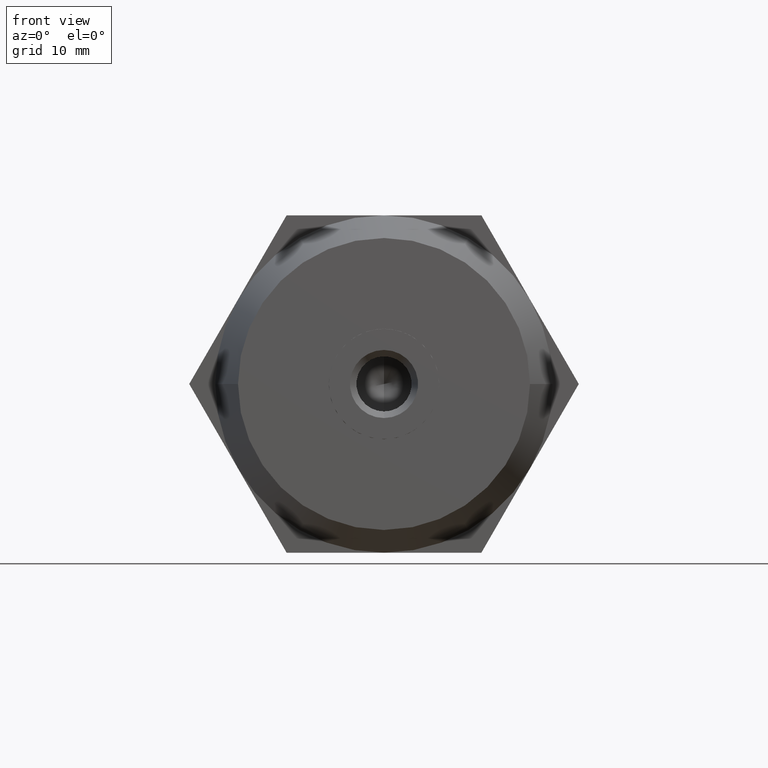
[diagram: clean part render]
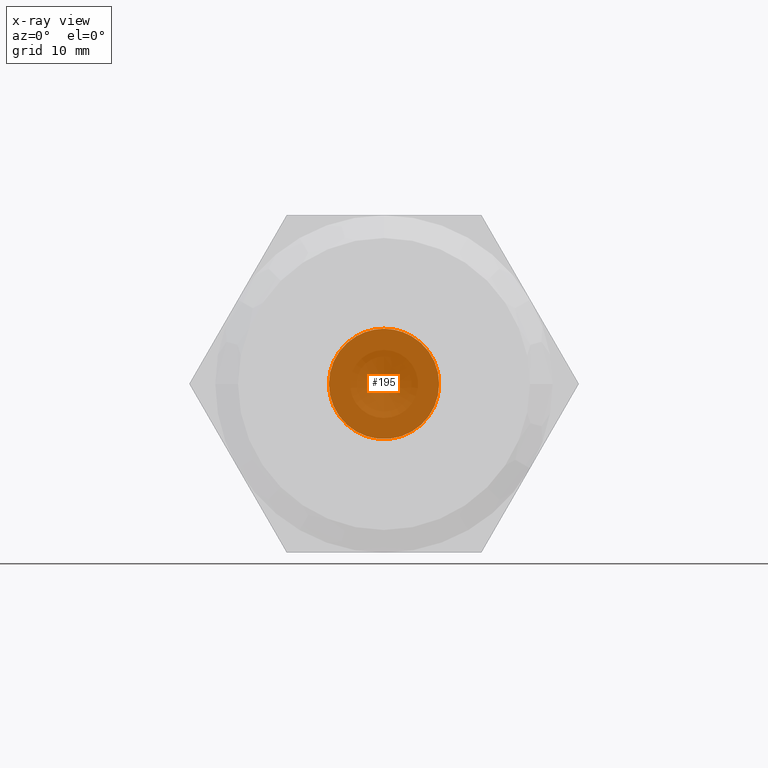
[diagram: x-ray — body ghosted, one internal face saturated and labeled with its STEP entity id]
A machine part, front view, then the same camera in x-ray: the body is ghosted and one INTERNAL B-rep face — a face not visible from any outside direction — is saturated and labeled: STEP entity #195.
In plain terms, the highlighted planar face has unit normal (0, 1, 0).
Its self-contained STEP definition (entity closure, byte-faithful):
#40 = AXIS2_PLACEMENT_3D ( 'NONE', #531, #3371, #2566 ) ;
#102 = DIRECTION ( 'NONE',  ( -0.0000000000000000000, -1.000000000000000000, -0.0000000000000000000 ) ) ;
#137 = AXIS2_PLACEMENT_3D ( 'NONE', #4569, #3074, #3446 ) ;
#176 = CARTESIAN_POINT ( 'NONE',  ( 0.0000000000000000000, 21.01000000000000200, 0.0000000000000000000 ) ) ;
#195 = ADVANCED_FACE ( 'NONE', ( #2151 ), #2296, .T. ) ;
#377 = DIRECTION ( 'NONE',  ( -0.0000000000000000000, -1.000000000000000000, -0.0000000000000000000 ) ) ;
#468 = DIRECTION ( 'NONE',  ( 1.776356839400250500E-015, 0.0000000000000000000, 1.000000000000000000 ) ) ;
#531 = CARTESIAN_POINT ( 'NONE',  ( 0.0000000000000000000, 21.01000000000000200, 0.0000000000000000000 ) ) ;
#536 = VERTEX_POINT ( 'NONE', #1663 ) ;
#562 = ORIENTED_EDGE ( 'NONE', *, *, #2543, .F. ) ;
#602 = VERTEX_POINT ( 'NONE', #781 ) ;
#781 = CARTESIAN_POINT ( 'NONE',  ( -4.249999999999935200, 21.00999999999900300, -7.361215932167759500 ) ) ;
#989 = DIRECTION ( 'NONE',  ( 5.329070518200752200E-015, 0.0000000000000000000, 1.000000000000000000 ) ) ;
#997 = DIRECTION ( 'NONE',  ( 0.0000000000000000000, 0.0000000000000000000, 1.000000000000000000 ) ) ;
#1014 = CARTESIAN_POINT ( 'NONE',  ( 8.500000000000000000, 21.01000000000000200, -3.469446951953615000E-015 ) ) ;
#1017 = CARTESIAN_POINT ( 'NONE',  ( 0.0000000000000000000, 21.01000000000000200, 0.0000000000000000000 ) ) ;
#1059 = ORIENTED_EDGE ( 'NONE', *, *, #1847, .F. ) ;
#1080 = CARTESIAN_POINT ( 'NONE',  ( -4.250000000000000000, 21.01000000000000200, 7.361215932167730200 ) ) ;
#1098 = DIRECTION ( 'NONE',  ( 0.0000000000000000000, 0.0000000000000000000, 1.000000000000000000 ) ) ;
#1226 = ORIENTED_EDGE ( 'NONE', *, *, #4556, .F. ) ;
#1350 = CIRCLE ( 'NONE', #2420, 8.500000000000000000 ) ;
#1583 = VERTEX_POINT ( 'NONE', #1080 ) ;
#1663 = CARTESIAN_POINT ( 'NONE',  ( 4.249999999999935200, 21.00999999999900300, 7.361215932167770100 ) ) ;
#1727 = CARTESIAN_POINT ( 'NONE',  ( 0.0000000000000000000, 21.01000000000000200, 8.500000000000000000 ) ) ;
#1795 = CIRCLE ( 'NONE', #4964, 8.500000000000000000 ) ;
#1847 = EDGE_CURVE ( 'NONE', #4633, #3278, #2586, .T. ) ;
#1964 = DIRECTION ( 'NONE',  ( 0.0000000000000000000, 1.000000000000000000, 0.0000000000000000000 ) ) ;
#1993 = CARTESIAN_POINT ( 'NONE',  ( 0.0000000000000000000, 21.01000000000000200, 0.0000000000000000000 ) ) ;
#2013 = EDGE_LOOP ( 'NONE', ( #3927, #2217, #1059, #562, #4083, #1226, #4515 ) ) ;
#2025 = EDGE_CURVE ( 'NONE', #3278, #536, #4104, .T. ) ;
#2151 = FACE_OUTER_BOUND ( 'NONE', #2013, .T. ) ;
#2217 = ORIENTED_EDGE ( 'NONE', *, *, #2025, .F. ) ;
#2296 = PLANE ( 'NONE',  #3242 ) ;
#2420 = AXIS2_PLACEMENT_3D ( 'NONE', #3227, #4017, #468 ) ;
#2451 = AXIS2_PLACEMENT_3D ( 'NONE', #3920, #377, #4324 ) ;
#2543 = EDGE_CURVE ( 'NONE', #602, #4633, #1350, .T. ) ;
#2566 = DIRECTION ( 'NONE',  ( 0.0000000000000000000, 0.0000000000000000000, 1.000000000000000000 ) ) ;
#2586 = CIRCLE ( 'NONE', #2451, 8.500000000000000000 ) ;
#2736 = CIRCLE ( 'NONE', #40, 8.500000000000000000 ) ;
#3000 = EDGE_CURVE ( 'NONE', #3186, #1583, #1795, .T. ) ;
#3074 = DIRECTION ( 'NONE',  ( -0.0000000000000000000, -1.000000000000000000, -0.0000000000000000000 ) ) ;
#3186 = VERTEX_POINT ( 'NONE', #1727 ) ;
#3227 = CARTESIAN_POINT ( 'NONE',  ( 0.0000000000000000000, 21.01000000000000200, 0.0000000000000000000 ) ) ;
#3242 = AXIS2_PLACEMENT_3D ( 'NONE', #3487, #1964, #1098 ) ;
#3267 = CIRCLE ( 'NONE', #4735, 8.500000000000000000 ) ;
#3278 = VERTEX_POINT ( 'NONE', #1014 ) ;
#3326 = EDGE_CURVE ( 'NONE', #536, #3186, #3267, .T. ) ;
#3353 = CARTESIAN_POINT ( 'NONE',  ( -8.500000000000000000, 21.01000000000000200, 0.0000000000000000000 ) ) ;
#3371 = DIRECTION ( 'NONE',  ( -0.0000000000000000000, -1.000000000000000000, -0.0000000000000000000 ) ) ;
#3446 = DIRECTION ( 'NONE',  ( 0.0000000000000000000, 0.0000000000000000000, 1.000000000000000000 ) ) ;
#3487 = CARTESIAN_POINT ( 'NONE',  ( 0.0000000000000000000, 21.01000000000000200, 0.0000000000000000000 ) ) ;
#3521 = DIRECTION ( 'NONE',  ( 0.0000000000000000000, 0.0000000000000000000, 1.000000000000000000 ) ) ;
#3767 = DIRECTION ( 'NONE',  ( -0.0000000000000000000, -1.000000000000000000, -0.0000000000000000000 ) ) ;
#3808 = DIRECTION ( 'NONE',  ( -0.0000000000000000000, -1.000000000000000000, -0.0000000000000000000 ) ) ;
#3920 = CARTESIAN_POINT ( 'NONE',  ( 0.0000000000000000000, 21.01000000000000200, 0.0000000000000000000 ) ) ;
#3922 = CARTESIAN_POINT ( 'NONE',  ( 4.250000000000060400, 21.00999999999900300, -7.361215932167689300 ) ) ;
#3927 = ORIENTED_EDGE ( 'NONE', *, *, #3326, .F. ) ;
#3945 = AXIS2_PLACEMENT_3D ( 'NONE', #1017, #3808, #997 ) ;
#4017 = DIRECTION ( 'NONE',  ( -0.0000000000000000000, -1.000000000000000000, -0.0000000000000000000 ) ) ;
#4083 = ORIENTED_EDGE ( 'NONE', *, *, #4439, .F. ) ;
#4104 = CIRCLE ( 'NONE', #3945, 8.500000000000000000 ) ;
#4324 = DIRECTION ( 'NONE',  ( -1.776356839400250500E-015, 0.0000000000000000000, 1.000000000000000000 ) ) ;
#4439 = EDGE_CURVE ( 'NONE', #4475, #602, #2736, .T. ) ;
#4475 = VERTEX_POINT ( 'NONE', #3353 ) ;
#4515 = ORIENTED_EDGE ( 'NONE', *, *, #3000, .F. ) ;
#4556 = EDGE_CURVE ( 'NONE', #1583, #4475, #4615, .T. ) ;
#4569 = CARTESIAN_POINT ( 'NONE',  ( 0.0000000000000000000, 21.01000000000000200, 0.0000000000000000000 ) ) ;
#4615 = CIRCLE ( 'NONE', #137, 8.500000000000000000 ) ;
#4633 = VERTEX_POINT ( 'NONE', #3922 ) ;
#4735 = AXIS2_PLACEMENT_3D ( 'NONE', #176, #3767, #989 ) ;
#4964 = AXIS2_PLACEMENT_3D ( 'NONE', #1993, #102, #3521 ) ;